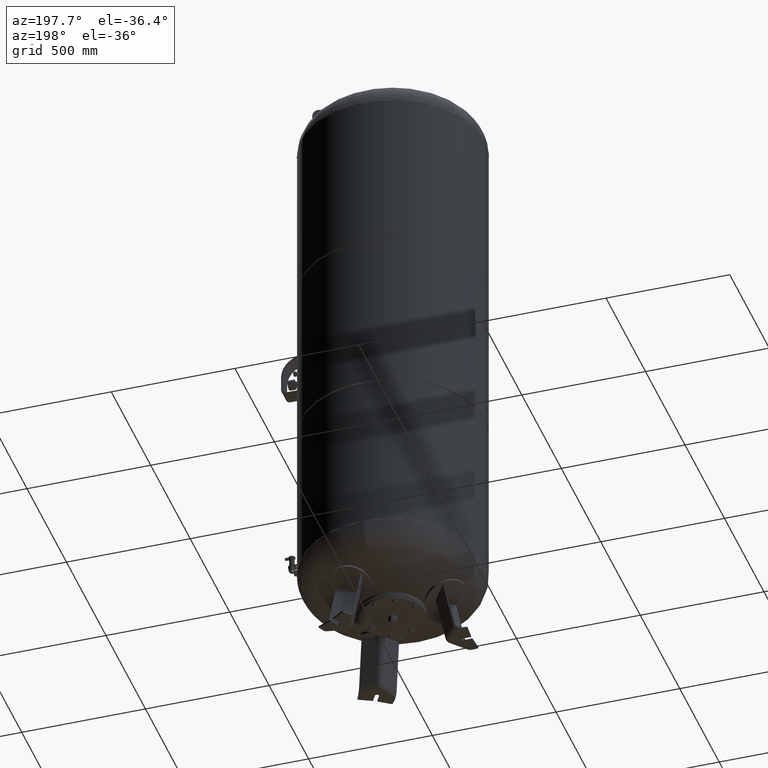
[diagram: clean part render]
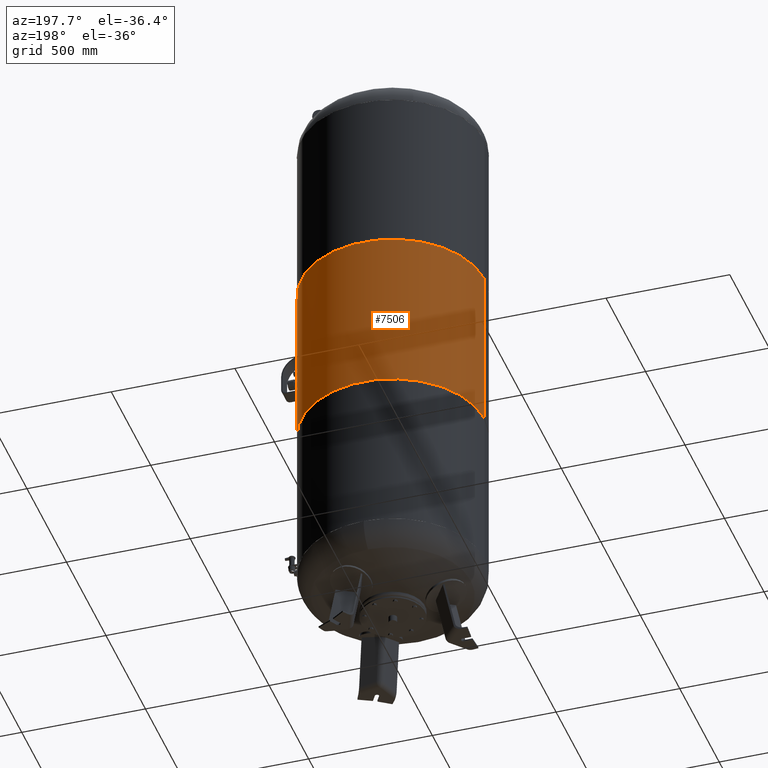
[diagram: same view with one face highlighted and labeled with its STEP entity id]
A machine part, auxiliary view. The second image highlights one B-rep face of the part: STEP entity #7506.
In plain terms, the highlighted cylindrical surface (partial cylindrical patch) has radius 370 mm, axis along (0, 0, 1).
Its self-contained STEP definition (entity closure, byte-faithful):
#7306=CARTESIAN_POINT('',(369.999999999999490,0.0,1707.666666666666700));
#7307=VERTEX_POINT('',#7306);
#7308=CARTESIAN_POINT('',(369.999999999999370,0.0,1040.333333333333000));
#7309=VERTEX_POINT('',#7308);
#7310=CARTESIAN_POINT('',(369.999999999999490,0.0,1707.666666666666700));
#7311=DIRECTION('',(0.0,0.0,-1.0));
#7312=VECTOR('',#7311,667.333333333333710);
#7313=LINE('',#7310,#7312);
#7314=EDGE_CURVE('',#7307,#7309,#7313,.T.);
#7316=CARTESIAN_POINT('',(-369.999999999999430,-4.531044E-014,1707.666666666666700));
#7317=VERTEX_POINT('',#7316);
#7325=CARTESIAN_POINT('',(-369.999999999999430,-4.531044E-014,1040.333333333333000));
#7326=VERTEX_POINT('',#7325);
#7327=CARTESIAN_POINT('',(-369.999999999999430,-4.531044E-014,1707.666666666666700));
#7328=DIRECTION('',(0.0,0.0,-1.0));
#7329=VECTOR('',#7328,667.333333333333710);
#7330=LINE('',#7327,#7329);
#7331=EDGE_CURVE('',#7317,#7326,#7330,.T.);
#7474=CARTESIAN_POINT('',(-5.562655E-015,0.0,1040.333333333333000));
#7475=DIRECTION('',(0.0,0.0,1.0));
#7476=DIRECTION('',(1.0,0.0,0.0));
#7477=AXIS2_PLACEMENT_3D('',#7474,#7475,#7476);
#7478=CIRCLE('',#7477,369.999999999999370);
#7479=EDGE_CURVE('',#7309,#7326,#7478,.T.);
#7489=CARTESIAN_POINT('',(0.0,0.0,1374.0));
#7490=DIRECTION('',(1.667129E-017,0.0,1.0));
#7491=DIRECTION('',(1.0,0.0,0.0));
#7492=AXIS2_PLACEMENT_3D('',#7489,#7490,#7491);
#7493=CYLINDRICAL_SURFACE('',#7492,369.999999999999430);
#7494=ORIENTED_EDGE('',*,*,#7314,.T.);
#7495=ORIENTED_EDGE('',*,*,#7479,.T.);
#7496=ORIENTED_EDGE('',*,*,#7331,.F.);
#7497=CARTESIAN_POINT('',(5.562655E-015,0.0,1707.666666666666700));
#7498=DIRECTION('',(0.0,0.0,1.0));
#7499=DIRECTION('',(1.0,0.0,0.0));
#7500=AXIS2_PLACEMENT_3D('',#7497,#7498,#7499);
#7501=CIRCLE('',#7500,369.999999999999490);
#7502=EDGE_CURVE('',#7307,#7317,#7501,.T.);
#7503=ORIENTED_EDGE('',*,*,#7502,.F.);
#7504=EDGE_LOOP('',(#7494,#7495,#7496,#7503));
#7505=FACE_OUTER_BOUND('',#7504,.T.);
#7506=ADVANCED_FACE('',(#7505),#7493,.T.);